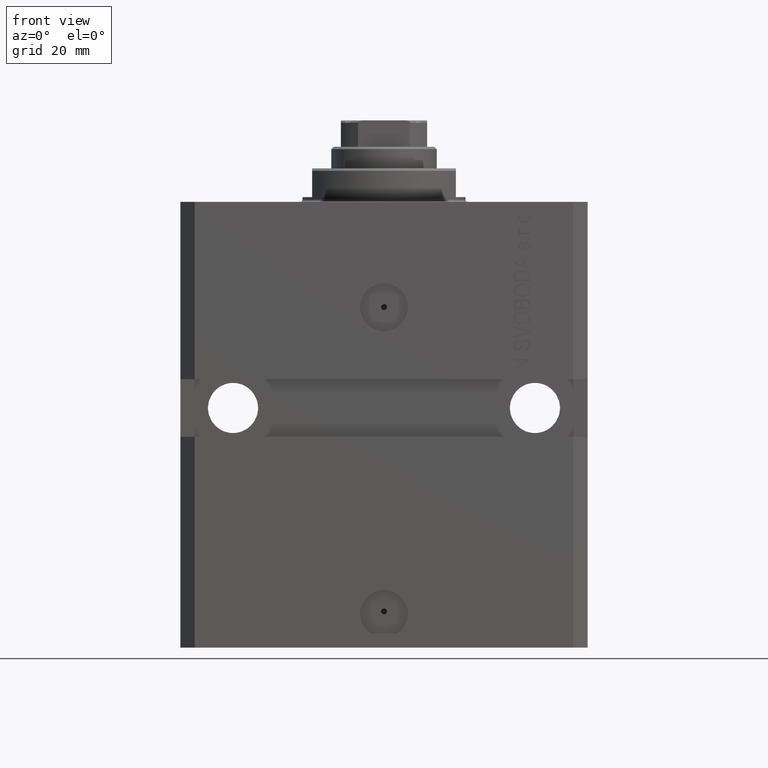
[diagram: clean part render]
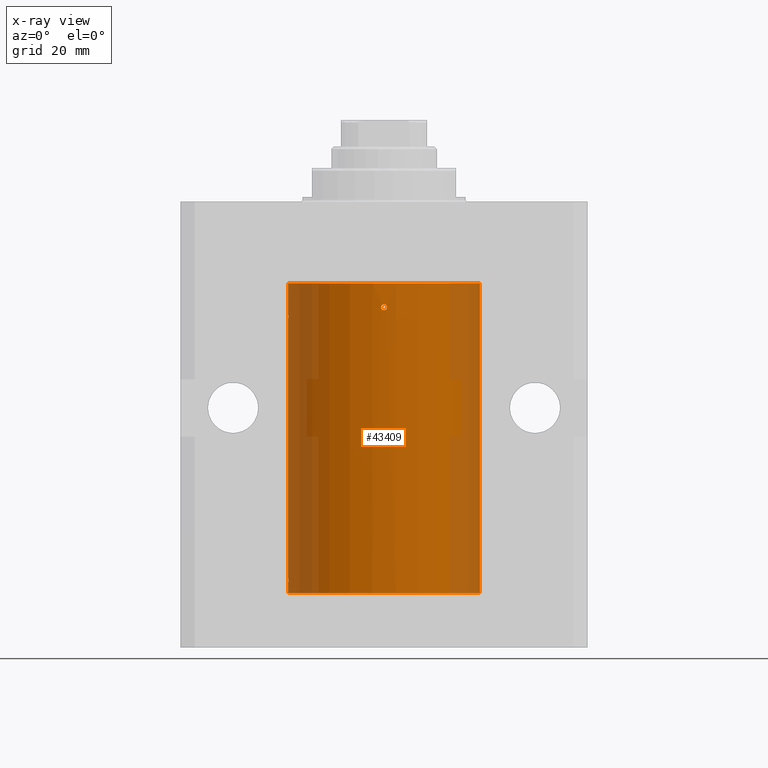
[diagram: x-ray — body ghosted, one internal face saturated and labeled with its STEP entity id]
A machine part, front view, then the same camera in x-ray: the body is ghosted and one INTERNAL B-rep face — a face not visible from any outside direction — is saturated and labeled: STEP entity #43409.
In plain terms, the highlighted cylindrical surface (partial cylindrical patch) has radius 20 mm, axis along (0, 0, 1).
Its self-contained STEP definition (entity closure, byte-faithful):
#137 = VERTEX_POINT ( 'NONE', #35556 ) ;
#372 = CARTESIAN_POINT ( 'NONE',  ( -0.1653813832397391104, -19.99999568866902067, -22.62486203736067125 ) ) ;
#586 = CARTESIAN_POINT ( 'NONE',  ( -0.5574110886242996665, -19.99256263711735215, -22.32630989244538711 ) ) ;
#862 = ORIENTED_EDGE ( 'NONE', *, *, #28225, .T. ) ;
#1031 = EDGE_LOOP ( 'NONE', ( #25446, #12264 ) ) ;
#1048 = VECTOR ( 'NONE', #29693, 1000.000000000000000 ) ;
#1401 = CARTESIAN_POINT ( 'NONE',  ( -19.99022768983530440, -0.6251375268966040677, -78.83566303088220195 ) ) ;
#1757 = DIRECTION ( 'NONE',  ( 1.000000000000000000, 0.000000000000000000, 0.000000000000000000 ) ) ;
#1869 = VERTEX_POINT ( 'NONE', #4406 ) ;
#2403 = CIRCLE ( 'NONE', #25597, 20.00000000000000000 ) ;
#3094 = CARTESIAN_POINT ( 'NONE',  ( -0.1628481006860607039, -20.00000180872260813, -21.37494212087287337 ) ) ;
#3777 = B_SPLINE_CURVE_WITH_KNOTS ( 'NONE', 3,
 ( #39044, #35430, #11388, #11830, #31805, #1401, #24793, #38602, #14803, #17965 ),
 .UNSPECIFIED., .F., .F.,
 ( 4, 2, 2, 2, 4 ),
 ( 0.001954154509844221576, 0.002442582466643782209, 0.002931010423443342408, 0.003419438380242903041, 0.003907866337042463674 ),
 .UNSPECIFIED. ) ;
#3997 = CARTESIAN_POINT ( 'NONE',  ( 0.6250000000000026645, -19.99023198964934522, -22.00000000000000000 ) ) ;
#4406 = CARTESIAN_POINT ( 'NONE',  ( -20.00000000000010303, 3.580159286679549072E-13, -79.62500000000332534 ) ) ;
#4446 = CARTESIAN_POINT ( 'NONE',  ( -20.00000000000010303, 3.580159278407742946E-13, -24.62500000000332889 ) ) ;
#4497 = FACE_BOUND ( 'NONE', #1031, .T. ) ;
#5024 = CARTESIAN_POINT ( 'NONE',  ( -20.00000000000000000, 2.449293598294706513E-15, -81.59999999999999432 ) ) ;
#5042 = AXIS2_PLACEMENT_3D ( 'NONE', #36423, #18970, #39591 ) ;
#6358 = EDGE_CURVE ( 'NONE', #1869, #28431, #3777, .T. ) ;
#8335 = DIRECTION ( 'NONE',  ( 1.000000000000000000, 0.000000000000000000, 0.000000000000000000 ) ) ;
#8452 = CARTESIAN_POINT ( 'NONE',  ( -20.00000000000000000, -1.124177324826063808E-14, -78.37500000000000000 ) ) ;
#8773 = CARTESIAN_POINT ( 'NONE',  ( 0.000000000000000000, 0.000000000000000000, -81.59999999999999432 ) ) ;
#8874 = DIRECTION ( 'NONE',  ( -0.000000000000000000, -0.000000000000000000, 1.000000000000000000 ) ) ;
#9222 = ORIENTED_EDGE ( 'NONE', *, *, #39584, .F. ) ;
#10161 = EDGE_CURVE ( 'NONE', #23961, #40100, #20928, .T. ) ;
#10961 = CARTESIAN_POINT ( 'NONE',  ( -19.99022768983530440, -0.6251375268965866372, -23.83566303088218064 ) ) ;
#11388 = CARTESIAN_POINT ( 'NONE',  ( -19.99767054355995555, -0.3263099029014857599, -79.55741108240768256 ) ) ;
#11830 = CARTESIAN_POINT ( 'NONE',  ( -19.99257639367449357, -0.5569510432580352388, -79.32709448625169557 ) ) ;
#11851 = DIRECTION ( 'NONE',  ( -0.000000000000000000, -0.000000000000000000, 1.000000000000000000 ) ) ;
#12264 = ORIENTED_EDGE ( 'NONE', *, *, #10161, .T. ) ;
#12950 = ORIENTED_EDGE ( 'NONE', *, *, #6358, .T. ) ;
#13516 = CARTESIAN_POINT ( 'NONE',  ( 0.6087363597162602780, -19.99075850180857117, -21.83635608258754957 ) ) ;
#13518 = CARTESIAN_POINT ( 'NONE',  ( 0.6250000000000026645, -19.99023198964934522, -22.00000000000000000 ) ) ;
#14663 = EDGE_CURVE ( 'NONE', #40100, #23961, #15170, .T. ) ;
#14803 = CARTESIAN_POINT ( 'NONE',  ( -20.00000000000000000, -0.1651542110816439091, -78.37500000000001421 ) ) ;
#15170 = B_SPLINE_CURVE_WITH_KNOTS ( 'NONE', 3,
 ( #20333, #27140, #13516, #30978, #40943, #16924, #34168, #3094, #44569, #27357, #41168, #23975 ),
 .UNSPECIFIED., .F., .F.,
 ( 4, 2, 2, 2, 2, 4 ),
 ( 0.000000000000000000, 0.0002442693132668051579, 0.0004885386265336103158, 0.0009770772530672282210, 0.001465615879600846126, 0.001954154506134463815 ),
 .UNSPECIFIED. ) ;
#16924 = CARTESIAN_POINT ( 'NONE',  ( 0.3265143537867915002, -19.99766736494331809, -21.44267231150418240 ) ) ;
#16962 = VECTOR ( 'NONE', #8874, 1000.000000000000000 ) ;
#17082 = EDGE_LOOP ( 'NONE', ( #23846, #38290, #12950, #31802, #29298, #862, #44713, #9222 ) ) ;
#17318 = VERTEX_POINT ( 'NONE', #30855 ) ;
#17597 = CARTESIAN_POINT ( 'NONE',  ( 0.6250000000000026645, -19.99023198964934522, -22.16515421183406076 ) ) ;
#17757 = CARTESIAN_POINT ( 'NONE',  ( -20.00000000000000000, -0.1651542110816374143, -23.37500000000000355 ) ) ;
#17965 = CARTESIAN_POINT ( 'NONE',  ( -20.00000000000000000, -1.124177324826063808E-14, -78.37500000000000000 ) ) ;
#18328 = CYLINDRICAL_SURFACE ( 'NONE', #43742, 20.00000000000000000 ) ;
#18813 = CIRCLE ( 'NONE', #5042, 20.00000000000000000 ) ;
#18876 = VECTOR ( 'NONE', #20720, 1000.000000000000000 ) ;
#18970 = DIRECTION ( 'NONE',  ( 0.000000000000000000, 0.000000000000000000, 1.000000000000000000 ) ) ;
#19036 = LINE ( 'NONE', #39888, #1048 ) ;
#19101 = CARTESIAN_POINT ( 'NONE',  ( 20.00000000000000000, 0.000000000000000000, -81.59999999999999432 ) ) ;
#20159 = VERTEX_POINT ( 'NONE', #4446 ) ;
#20333 = CARTESIAN_POINT ( 'NONE',  ( 0.6250000000000026645, -19.99023198964934522, -22.00000000000000000 ) ) ;
#20720 = DIRECTION ( 'NONE',  ( -0.000000000000000000, -0.000000000000000000, 1.000000000000000000 ) ) ;
#20928 = B_SPLINE_CURVE_WITH_KNOTS ( 'NONE', 3,
 ( #21232, #44793, #586, #27359, #372, #42076, #30759, #41170, #17597, #13518 ),
 .UNSPECIFIED., .F., .F.,
 ( 4, 2, 2, 2, 4 ),
 ( 0.001954154506134463815, 0.002442582461700956980, 0.002931010417267450145, 0.003419438372833943311, 0.003907866328400436476 ),
 .UNSPECIFIED. ) ;
#21232 = CARTESIAN_POINT ( 'NONE',  ( -0.6250000000033326675, -19.99023198964924219, -21.99999999999967315 ) ) ;
#21395 = CARTESIAN_POINT ( 'NONE',  ( -19.99257639367449357, -0.5569510432580226933, -24.32709448625169557 ) ) ;
#22954 = LINE ( 'NONE', #19101, #24989 ) ;
#23458 = CARTESIAN_POINT ( 'NONE',  ( -20.00000000000000000, 2.449293598294706513E-15, -81.59999999999999432 ) ) ;
#23846 = ORIENTED_EDGE ( 'NONE', *, *, #26029, .F. ) ;
#23961 = VERTEX_POINT ( 'NONE', #37049 ) ;
#23975 = CARTESIAN_POINT ( 'NONE',  ( -0.6250000000033326675, -19.99023198964924219, -21.99999999999967315 ) ) ;
#24793 = CARTESIAN_POINT ( 'NONE',  ( -19.99255948581289033, -0.5575529953197770894, -78.67383335671266309 ) ) ;
#24989 = VECTOR ( 'NONE', #11851, 1000.000000000000000 ) ;
#25446 = ORIENTED_EDGE ( 'NONE', *, *, #14663, .T. ) ;
#25597 = AXIS2_PLACEMENT_3D ( 'NONE', #43452, #26241, #1757 ) ;
#26029 = EDGE_CURVE ( 'NONE', #42504, #43535, #18813, .T. ) ;
#26241 = DIRECTION ( 'NONE',  ( 0.000000000000000000, 0.000000000000000000, 1.000000000000000000 ) ) ;
#27140 = CARTESIAN_POINT ( 'NONE',  ( 0.6250000000000028866, -19.99023198964935233, -21.91740418326171280 ) ) ;
#27357 = CARTESIAN_POINT ( 'NONE',  ( -0.5585582113630487289, -19.99253968778482360, -21.67461956847272830 ) ) ;
#27359 = CARTESIAN_POINT ( 'NONE',  ( -0.3270944962368909081, -19.99765679051705902, -22.55695103748945129 ) ) ;
#27407 = EDGE_CURVE ( 'NONE', #20159, #17318, #28940, .T. ) ;
#27527 = CARTESIAN_POINT ( 'NONE',  ( -20.00000000000000000, 2.449293598294706513E-15, -81.59999999999999432 ) ) ;
#28225 = EDGE_CURVE ( 'NONE', #17318, #33118, #44293, .T. ) ;
#28419 = CARTESIAN_POINT ( 'NONE',  ( -19.99767054355995555, -0.3263099029014763230, -24.55741108240767190 ) ) ;
#28431 = VERTEX_POINT ( 'NONE', #8452 ) ;
#28940 = B_SPLINE_CURVE_WITH_KNOTS ( 'NONE', 3,
 ( #35217, #35002, #28419, #21395, #31824, #10961, #32052, #34778, #17757, #39060 ),
 .UNSPECIFIED., .F., .F.,
 ( 4, 2, 2, 2, 4 ),
 ( 0.001954154509844215938, 0.002442582466643772668, 0.002931010423443329831, 0.003419438380242886995, 0.003907866337042443725 ),
 .UNSPECIFIED. ) ;
#29298 = ORIENTED_EDGE ( 'NONE', *, *, #27407, .T. ) ;
#29693 = DIRECTION ( 'NONE',  ( -0.000000000000000000, -0.000000000000000000, 1.000000000000000000 ) ) ;
#30759 = CARTESIAN_POINT ( 'NONE',  ( 0.3261666526553446133, -19.99767369487616264, -22.55755299038902706 ) ) ;
#30855 = CARTESIAN_POINT ( 'NONE',  ( -20.00000000000000000, -2.867584836844214272E-15, -23.37500000000000000 ) ) ;
#30978 = CARTESIAN_POINT ( 'NONE',  ( 0.5459793025363884889, -19.99257092108152634, -21.68496684531850249 ) ) ;
#31802 = ORIENTED_EDGE ( 'NONE', *, *, #43205, .T. ) ;
#31805 = CARTESIAN_POINT ( 'NONE',  ( -19.99023630310506761, -0.6248620367829604838, -79.16538138329534036 ) ) ;
#31824 = CARTESIAN_POINT ( 'NONE',  ( -19.99023630310506761, -0.6248620367829522682, -24.16538138329532259 ) ) ;
#32052 = CARTESIAN_POINT ( 'NONE',  ( -19.99255948581289744, -0.5575529953197640998, -23.67383335671266309 ) ) ;
#32169 = FACE_OUTER_BOUND ( 'NONE', #17082, .T. ) ;
#32821 = DIRECTION ( 'NONE',  ( -0.000000000000000000, -0.000000000000000000, 1.000000000000000000 ) ) ;
#33118 = VERTEX_POINT ( 'NONE', #39429 ) ;
#34168 = CARTESIAN_POINT ( 'NONE',  ( 0.1632920704146597346, -19.99999818881353164, -21.37505795797077823 ) ) ;
#34778 = CARTESIAN_POINT ( 'NONE',  ( -19.99765984516761819, -0.3269569594423944459, -23.44291008943298849 ) ) ;
#35002 = CARTESIAN_POINT ( 'NONE',  ( -20.00000000000000355, -0.1631318982819147112, -24.62500000000014566 ) ) ;
#35217 = CARTESIAN_POINT ( 'NONE',  ( -20.00000000000010303, 3.580159278407742946E-13, -24.62500000000332889 ) ) ;
#35430 = CARTESIAN_POINT ( 'NONE',  ( -20.00000000000000355, -0.1631318982819177366, -79.62500000000015632 ) ) ;
#35556 = CARTESIAN_POINT ( 'NONE',  ( 20.00000000000000000, 0.000000000000000000, -17.00000000000000000 ) ) ;
#35882 = LINE ( 'NONE', #5024, #16962 ) ;
#36423 = CARTESIAN_POINT ( 'NONE',  ( 0.000000000000000000, 0.000000000000000000, -81.59999999999999432 ) ) ;
#36599 = EDGE_CURVE ( 'NONE', #33118, #137, #2403, .T. ) ;
#37049 = CARTESIAN_POINT ( 'NONE',  ( -0.6250000000033326675, -19.99023198964924219, -21.99999999999967315 ) ) ;
#38290 = ORIENTED_EDGE ( 'NONE', *, *, #41765, .T. ) ;
#38602 = CARTESIAN_POINT ( 'NONE',  ( -19.99765984516762174, -0.3269569594424049930, -78.44291008943298493 ) ) ;
#39044 = CARTESIAN_POINT ( 'NONE',  ( -20.00000000000010303, 3.580159286679549072E-13, -79.62500000000332534 ) ) ;
#39060 = CARTESIAN_POINT ( 'NONE',  ( -20.00000000000000000, -2.867584836844214272E-15, -23.37500000000000000 ) ) ;
#39429 = CARTESIAN_POINT ( 'NONE',  ( -20.00000000000000000, 2.449293598294706513E-15, -17.00000000000000000 ) ) ;
#39584 = EDGE_CURVE ( 'NONE', #43535, #137, #22954, .T. ) ;
#39591 = DIRECTION ( 'NONE',  ( 1.000000000000000000, 0.000000000000000000, 0.000000000000000000 ) ) ;
#39888 = CARTESIAN_POINT ( 'NONE',  ( -20.00000000000000000, 2.449293598294706513E-15, -81.59999999999999432 ) ) ;
#40100 = VERTEX_POINT ( 'NONE', #3997 ) ;
#40943 = CARTESIAN_POINT ( 'NONE',  ( 0.4995363768272698679, -19.99384383563509360, -21.61563220462100432 ) ) ;
#41168 = CARTESIAN_POINT ( 'NONE',  ( -0.6249999999998574474, -19.99023198964934878, -21.83683113816865529 ) ) ;
#41170 = CARTESIAN_POINT ( 'NONE',  ( 0.5570899181683264256, -19.99257333899569744, -22.32695694742785619 ) ) ;
#41765 = EDGE_CURVE ( 'NONE', #42504, #1869, #35882, .T. ) ;
#42076 = CARTESIAN_POINT ( 'NONE',  ( 0.1643369734423495987, -20.00000429769607280, -22.62513752632251851 ) ) ;
#42504 = VERTEX_POINT ( 'NONE', #27527 ) ;
#43205 = EDGE_CURVE ( 'NONE', #28431, #20159, #19036, .T. ) ;
#43409 = ADVANCED_FACE ( 'NONE', ( #4497, #32169 ), #18328, .F. ) ;
#43452 = CARTESIAN_POINT ( 'NONE',  ( 0.000000000000000000, 0.000000000000000000, -17.00000000000000000 ) ) ;
#43535 = VERTEX_POINT ( 'NONE', #44344 ) ;
#43742 = AXIS2_PLACEMENT_3D ( 'NONE', #8773, #32821, #8335 ) ;
#44293 = LINE ( 'NONE', #23458, #18876 ) ;
#44344 = CARTESIAN_POINT ( 'NONE',  ( 20.00000000000000000, 0.000000000000000000, -81.59999999999999432 ) ) ;
#44569 = CARTESIAN_POINT ( 'NONE',  ( -0.3251162203622516289, -19.99769811469285230, -21.44128795971509405 ) ) ;
#44713 = ORIENTED_EDGE ( 'NONE', *, *, #36599, .T. ) ;
#44793 = CARTESIAN_POINT ( 'NONE',  ( -0.6250000000001382228, -19.99023198964934167, -22.16313189841578080 ) ) ;